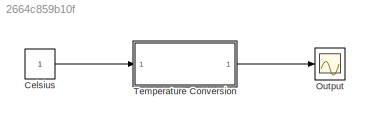
MODEL slx_2664c859b10f
KIND model
CONFIG AbsTol = auto
CONFIG EnableMultiTasking = off
CONFIG FixedStep = auto
CONFIG MaxStep = auto
CONFIG MinStep = auto
CONFIG RelTol = 1e-3
CONFIG SampleTimeConstraint = Unconstrained
CONFIG SolverName = VariableStepAuto
CONFIG StartTime = 0.0
CONFIG StopTime = 10.0
BLOCK [Constant] Celsius
BLOCK [Scope] Output
  ActiveDisplayYMaximum = 592.96951621888866
  ActiveDisplayYMinimum = -233.26328995402707
  ContainerLayout = {"WindowBounds":[989,1363,522,765]}
  Floating = off
  GraphicalSettings = {"Style":{"BackgroundColor":[0.12941176470588237,0.12941176470588237,0.12941176470588237],"AxesColor":[0.07058823529411765,0.07058823529411765,0.07058823529411765],"LabelsColor":[0.8509803921568627,0.8509803921568627,0.8509803921568627],"PreserveColors":false,"Visible":[true,true,true,true],"LineStyle":["-","-","-","-"],"LineWidth":[1.5,1.5,1.5,1.5],"BarWidth":[0.9,0.9,0.9,0.9],"LineColor":["auto"...<+2432ch>
  MultipleDisplayCache = [{"MaxYLimMag":557.30652777777789,"MaxYLimReal":592.96951621888866,"MinYLimMag":0,"MinYLimReal":-233.26328995402707,"PlotAsMagnitudePhase":false,"ShowGrid":true,"ShowLegend":true,"Title":"%<SignalLabel>","YLabel":"Temperature"}]
  NumInputPorts = 1
  ShowLegend = on
  ShowTimeAxisLabel = on
  Visible = on
  WasSavedAsWebScope = on
  WindowPosition = [989.000000,30.000000,524.000000,768.000000,]
  YLabel = Temperature
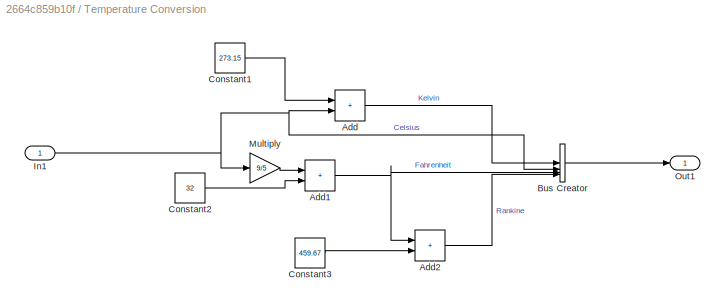
BLOCK [SubSystem] Temperature Conversion
BLOCK [Sum] Temperature Conversion/Add
  IconShape = rectangular
BLOCK [Sum] Temperature Conversion/Add1
  IconShape = rectangular
BLOCK [Sum] Temperature Conversion/Add2
  IconShape = rectangular
BLOCK [BusCreator] Temperature Conversion/Bus Creator
  DisplayOption = bar
  InheritFromInputs = on
  Inputs = 4
BLOCK [Constant] Temperature Conversion/Constant1
  Value = 273.15
BLOCK [Constant] Temperature Conversion/Constant2
  Value = 32
BLOCK [Constant] Temperature Conversion/Constant3
  Value = 459.67
BLOCK [Inport] Temperature Conversion/In1
BLOCK [Gain] Temperature Conversion/Multiply
  Gain = 9/5
BLOCK [Outport] Temperature Conversion/Out1
LINE Celsius:1 -> Temperature Conversion:1
NET Temperature Conversion/Add1:1 -> Temperature Conversion/Add2:1, Temperature Conversion/Bus Creator:3
LINE Temperature Conversion/Add2:1 -> Temperature Conversion/Bus Creator:4
LINE Temperature Conversion/Add:1 -> Temperature Conversion/Bus Creator:1
LINE Temperature Conversion/Bus Creator:1 -> Temperature Conversion/Out1:1
LINE Temperature Conversion/Constant1:1 -> Temperature Conversion/Add:1
LINE Temperature Conversion/Constant2:1 -> Temperature Conversion/Add1:2
LINE Temperature Conversion/Constant3:1 -> Temperature Conversion/Add2:2
NET Temperature Conversion/In1:1 -> Temperature Conversion/Add:2, Temperature Conversion/Bus Creator:2, Temperature Conversion/Multiply:1
LINE Temperature Conversion/Multiply:1 -> Temperature Conversion/Add1:1
LINE Temperature Conversion:1 -> Output:1
note: NET lines group one-source signal fan-out (src -> all destinations, sorted); 1:1 wires keep LINE
